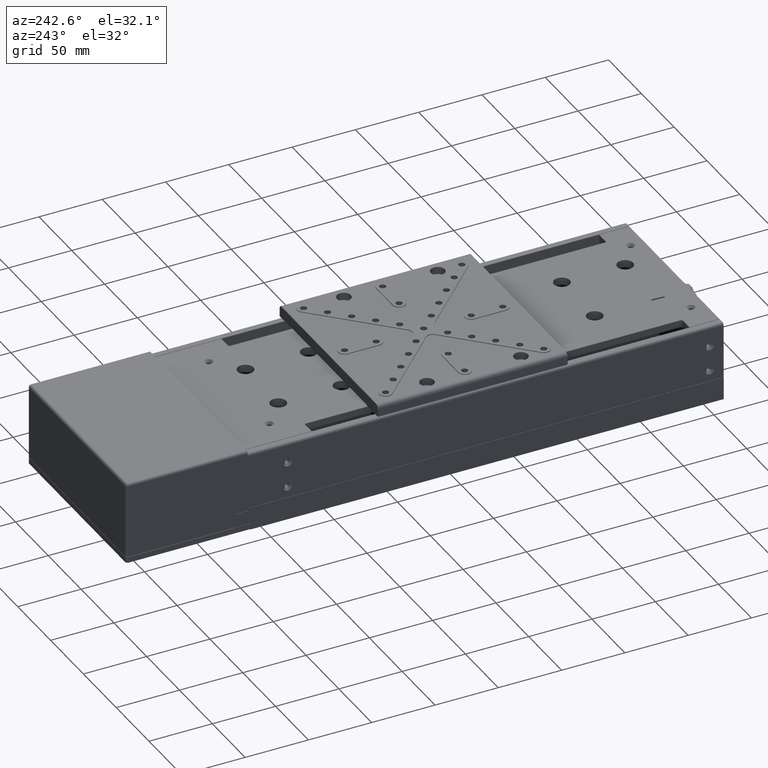
[diagram: clean part render]
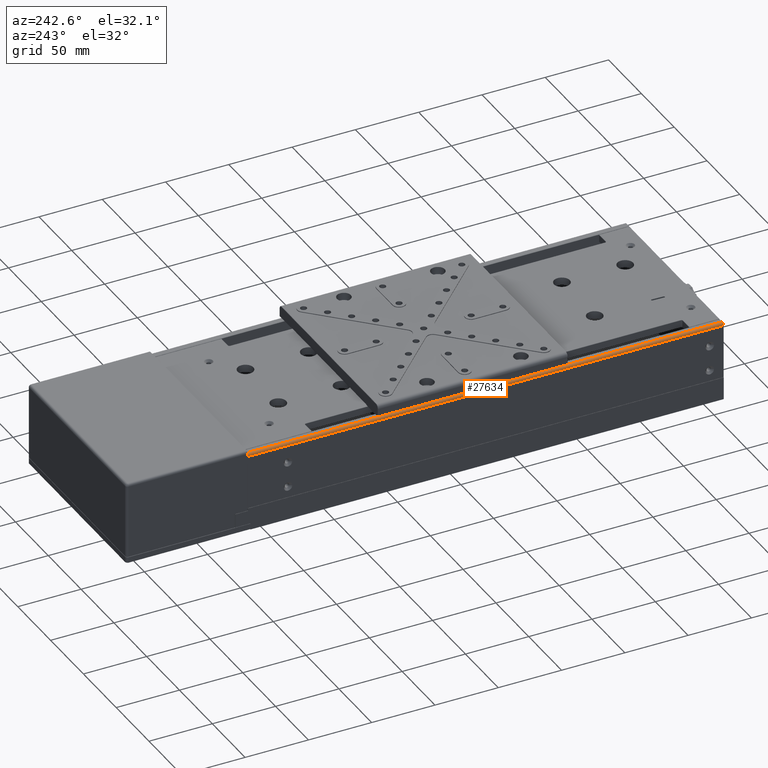
[diagram: same view with one face highlighted and labeled with its STEP entity id]
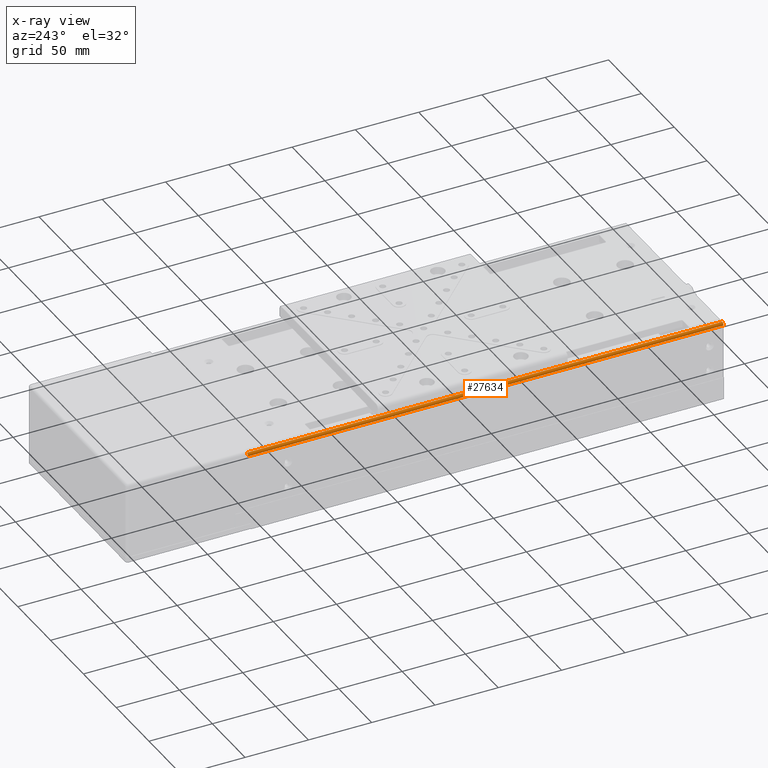
[diagram: x-ray of the same camera — body ghosted, the highlighted face saturated]
A machine part, auxiliary view. The second image highlights one B-rep face of the part: STEP entity #27634.
The next image is the same camera in x-ray: the body ghosted, the highlighted face saturated — about 0% of this face is hidden behind the body in this view.
In plain terms, the highlighted cylindrical surface (edge-blend (fillet) strip) has radius 2 mm, axis along (0, -1, -0).
Its self-contained STEP definition (entity closure, byte-faithful):
#4063 = CARTESIAN_POINT ( 'NONE',  ( -145.5854323028810029, 266.0311902418279715, 39.04665025355569696 ) ) ;
#5217 = ORIENTED_EDGE ( 'NONE', *, *, #20030, .T. ) ;
#5790 = DIRECTION ( 'NONE',  ( 0.000000000000000000, -1.000000000000000000, -4.024558464266189994E-16 ) ) ;
#6873 = VERTEX_POINT ( 'NONE', #64507 ) ;
#7206 = AXIS2_PLACEMENT_3D ( 'NONE', #15735, #39888, #45529 ) ;
#10202 = CARTESIAN_POINT ( 'NONE',  ( -143.5854323028810029, -109.9688097581720001, 39.04665025355554775 ) ) ;
#12884 = EDGE_CURVE ( 'NONE', #6873, #52018, #54767, .T. ) ;
#15735 = CARTESIAN_POINT ( 'NONE',  ( -143.5854323028810029, 265.8311902418279828, 39.04665025355569696 ) ) ;
#16233 = FACE_OUTER_BOUND ( 'NONE', #27079, .T. ) ;
#20030 = EDGE_CURVE ( 'NONE', #45928, #67216, #27498, .T. ) ;
#21138 = VECTOR ( 'NONE', #50070, 1000.000000000000000 ) ;
#27079 = EDGE_LOOP ( 'NONE', ( #33229, #5217, #78020, #44406 ) ) ;
#27498 = CIRCLE ( 'NONE', #50575, 2.000000000000001776 ) ;
#27589 = DIRECTION ( 'NONE',  ( 0.000000000000000000, 1.000000000000000000, 4.024558464266194924E-16 ) ) ;
#27634 = ADVANCED_FACE ( 'NONE', ( #16233 ), #40774, .T. ) ;
#33229 = ORIENTED_EDGE ( 'NONE', *, *, #57829, .F. ) ;
#35013 = LINE ( 'NONE', #4063, #51804 ) ;
#35145 = DIRECTION ( 'NONE',  ( -1.000000000000000000, 0.000000000000000000, 0.000000000000000000 ) ) ;
#37463 = CARTESIAN_POINT ( 'NONE',  ( -145.5854323028810029, 265.8311902418279828, 39.04665025355569696 ) ) ;
#39888 = DIRECTION ( 'NONE',  ( 0.000000000000000000, -1.000000000000000000, -4.024558464266194924E-16 ) ) ;
#40774 = CYLINDRICAL_SURFACE ( 'NONE', #42481, 2.000000000000001776 ) ;
#41039 = DIRECTION ( 'NONE',  ( -2.352436789038279947E-18, 1.000000000000000000, 4.024558464266189994E-16 ) ) ;
#42481 = AXIS2_PLACEMENT_3D ( 'NONE', #10202, #5790, #35145 ) ;
#44406 = ORIENTED_EDGE ( 'NONE', *, *, #12884, .T. ) ;
#45529 = DIRECTION ( 'NONE',  ( -1.000000000000000000, 0.000000000000000000, 0.000000000000000000 ) ) ;
#45928 = VERTEX_POINT ( 'NONE', #65894 ) ;
#50070 = DIRECTION ( 'NONE',  ( 2.352436789038279947E-18, -1.000000000000000000, -4.024558464266189994E-16 ) ) ;
#50575 = AXIS2_PLACEMENT_3D ( 'NONE', #59345, #27589, #52126 ) ;
#51520 = CARTESIAN_POINT ( 'NONE',  ( -143.5854323028810029, -109.7688097581719973, 41.04665025355554775 ) ) ;
#51804 = VECTOR ( 'NONE', #41039, 1000.000000000000000 ) ;
#52018 = VERTEX_POINT ( 'NONE', #37463 ) ;
#52126 = DIRECTION ( 'NONE',  ( 1.000000000000000000, 0.000000000000000000, 0.000000000000000000 ) ) ;
#54767 = CIRCLE ( 'NONE', #7206, 2.000000000000001776 ) ;
#57829 = EDGE_CURVE ( 'NONE', #45928, #52018, #35013, .T. ) ;
#59345 = CARTESIAN_POINT ( 'NONE',  ( -143.5854323028810029, -109.7688097581719973, 39.04665025355554775 ) ) ;
#62962 = CARTESIAN_POINT ( 'NONE',  ( -143.5854323028810029, -109.9688097581720001, 41.04665025355554775 ) ) ;
#64507 = CARTESIAN_POINT ( 'NONE',  ( -143.5854323028810029, 265.8311902418279828, 41.04665025355570407 ) ) ;
#65894 = CARTESIAN_POINT ( 'NONE',  ( -145.5854323028810029, -109.7688097581719973, 39.04665025355554775 ) ) ;
#67216 = VERTEX_POINT ( 'NONE', #51520 ) ;
#75017 = LINE ( 'NONE', #62962, #21138 ) ;
#75412 = EDGE_CURVE ( 'NONE', #6873, #67216, #75017, .T. ) ;
#78020 = ORIENTED_EDGE ( 'NONE', *, *, #75412, .F. ) ;